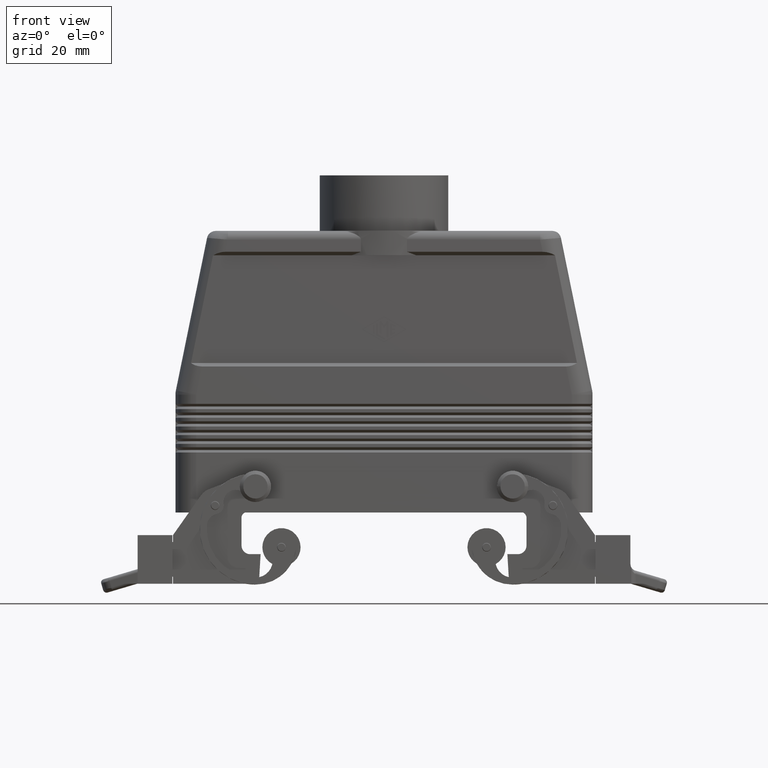
[diagram: clean part render]
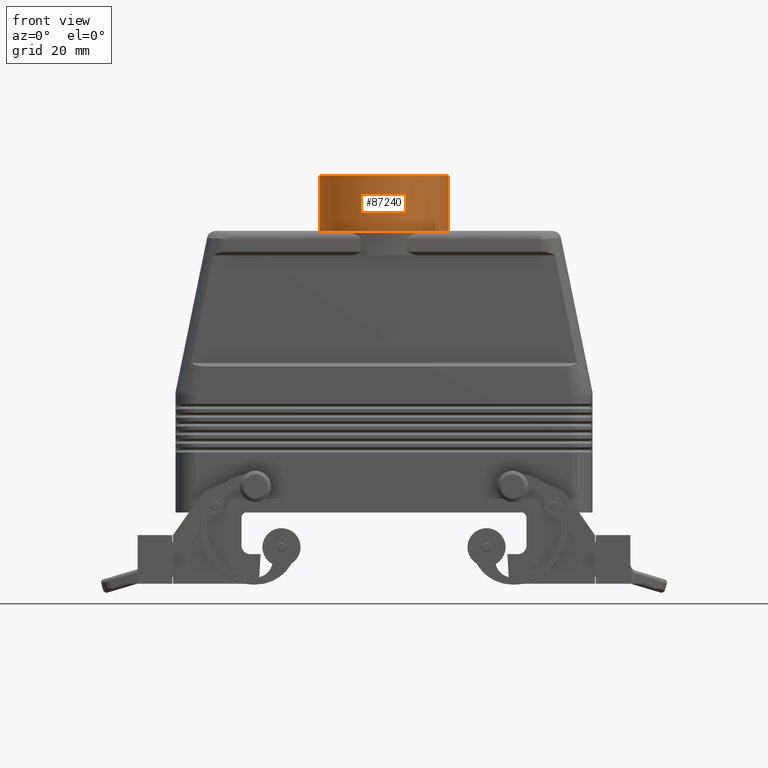
[diagram: same view with one face highlighted and labeled with its STEP entity id]
A machine part, front view. The second image highlights one B-rep face of the part: STEP entity #87240.
In plain terms, the highlighted cylindrical surface (partial cylindrical patch) has radius 18.5 mm, axis along (0, 0, -1).
Its self-contained STEP definition (entity closure, byte-faithful):
#86790=CARTESIAN_POINT('',(1.33226762955019E-15,-1.2916074523265E-14,97.
));
#86800=DIRECTION('',(0.,0.,-1.));
#86810=DIRECTION('',(-1.,0.,-0.));
#86820=AXIS2_PLACEMENT_3D('',#86790,#86800,#86810);
#86830=CYLINDRICAL_SURFACE('',#86820,18.5);
#86840=CARTESIAN_POINT('',(-18.5,-1.2916074523265E-14,97.));
#86850=DIRECTION('',(0.,0.,-1.));
#86860=VECTOR('',#86850,1.);
#86870=LINE('',#86840,#86860);
#86880=CARTESIAN_POINT('',(-18.5,-1.2916074523265E-14,97.));
#86890=VERTEX_POINT('',#86880);
#86900=CARTESIAN_POINT('',(-18.5,-1.2916074523265E-14,81.));
#86910=VERTEX_POINT('',#86900);
#86920=EDGE_CURVE('',#86890,#86910,#86870,.T.);
#86930=ORIENTED_EDGE('',*,*,#86920,.T.);
#86940=CARTESIAN_POINT('',(1.33226762955019E-15,-1.2916074523265E-14,97.
));
#86950=DIRECTION('',(0.,0.,-1.));
#86960=DIRECTION('',(-1.,0.,0.));
#86970=AXIS2_PLACEMENT_3D('',#86940,#86950,#86960);
#86980=CIRCLE('',#86970,18.5);
#86990=CARTESIAN_POINT('',(4.73066249718409E-15,-18.5,97.));
#87000=VERTEX_POINT('',#86990);
#87010=EDGE_CURVE('',#87000,#86890,#86980,.T.);
#87020=ORIENTED_EDGE('',*,*,#87010,.T.);
#87030=CARTESIAN_POINT('',(18.5,-1.06504779448424E-14,97.));
#87040=VERTEX_POINT('',#87030);
#87050=EDGE_CURVE('',#87040,#87000,#86980,.T.);
#87060=ORIENTED_EDGE('',*,*,#87050,.T.);
#87070=CARTESIAN_POINT('',(18.5,-1.06504779448424E-14,97.));
#87080=DIRECTION('',(0.,0.,-1.));
#87090=VECTOR('',#87080,1.);
#87100=LINE('',#87070,#87090);
#87110=CARTESIAN_POINT('',(18.5,-1.06504779448424E-14,81.));
#87120=VERTEX_POINT('',#87110);
#87130=EDGE_CURVE('',#87040,#87120,#87100,.T.);
#87140=ORIENTED_EDGE('',*,*,#87130,.F.);
#87150=CARTESIAN_POINT('',(1.33226762955019E-15,-1.4210854715202E-14,81.
));
#87160=DIRECTION('',(0.,0.,1.));
#87170=DIRECTION('',(1.,0.,0.));
#87180=AXIS2_PLACEMENT_3D('',#87150,#87160,#87170);
#87190=CIRCLE('',#87180,18.5);
#87200=EDGE_CURVE('',#86910,#87120,#87190,.T.);
#87210=ORIENTED_EDGE('',*,*,#87200,.T.);
#87220=EDGE_LOOP('',(#87210,#87140,#87060,#87020,#86930));
#87230=FACE_OUTER_BOUND('',#87220,.T.);
#87240=ADVANCED_FACE('',(#87230),#86830,.T.);